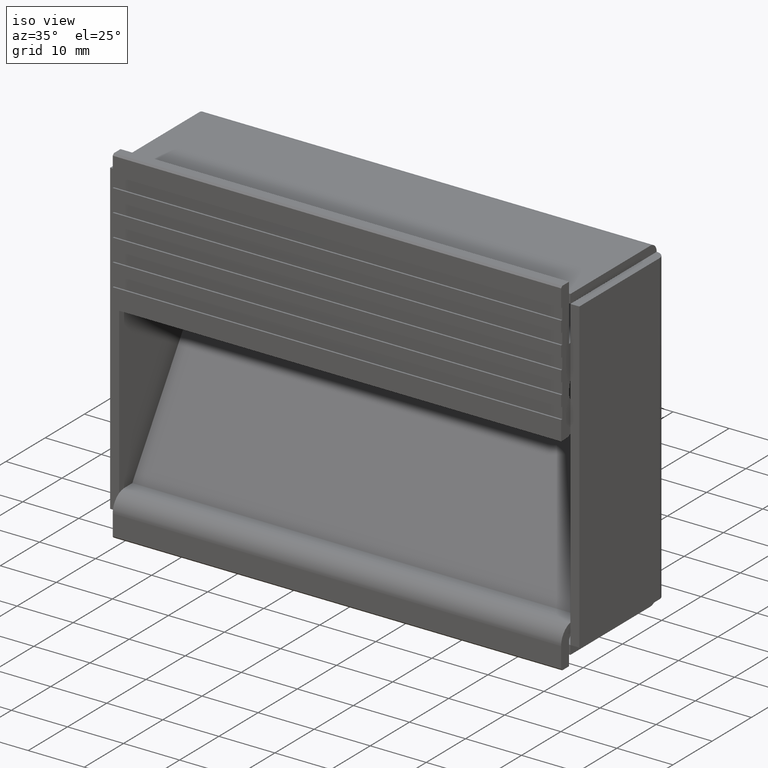
[diagram: clean part render]
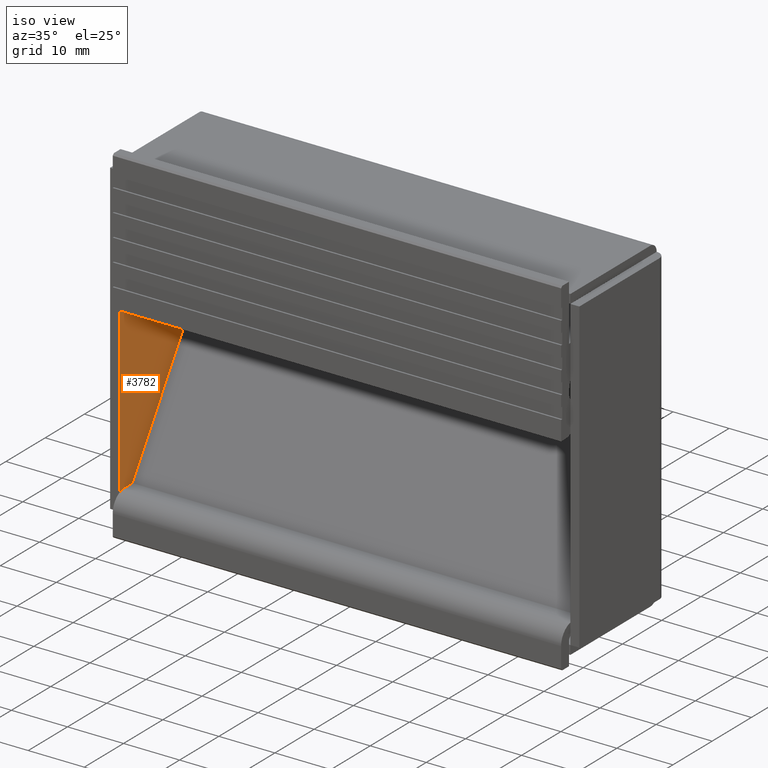
[diagram: same view with one face highlighted and labeled with its STEP entity id]
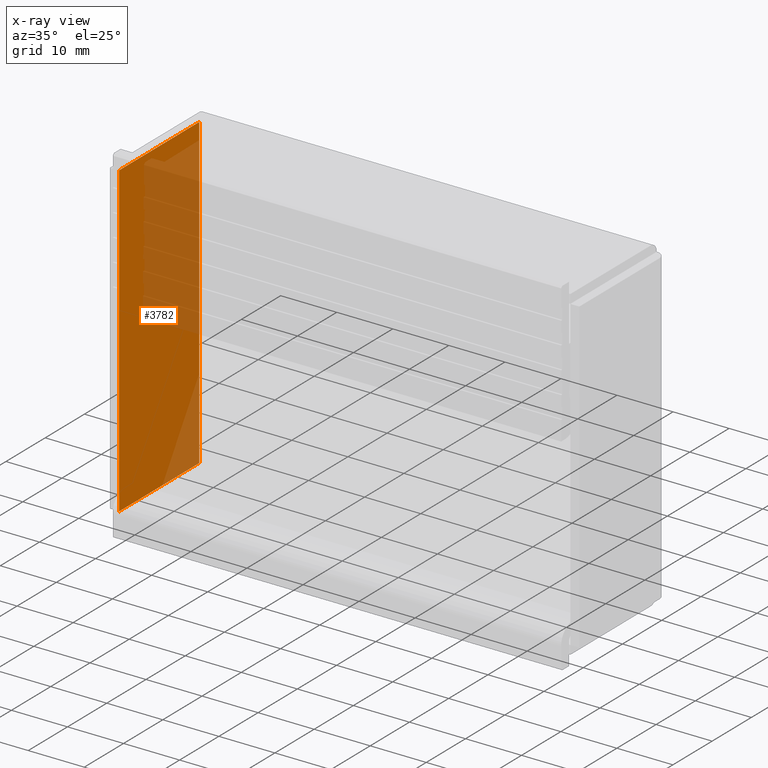
[diagram: x-ray of the same camera — body ghosted, the highlighted face saturated]
A machine part, iso view. The second image highlights one B-rep face of the part: STEP entity #3782.
The next image is the same camera in x-ray: the body ghosted, the highlighted face saturated — about 41% of this face is hidden behind the body in this view.
In plain terms, the highlighted face is a freeform B-spline surface patch.
Its self-contained STEP definition (entity closure, byte-faithful):
#3670=CARTESIAN_POINT('',(-40.250000000000000,36.368047999999952,58.500000000000000));
#3671=VERTEX_POINT('',#3670);
#3686=CARTESIAN_POINT('',(-40.250000000000000,36.368047999999952,3.500000000000000));
#3687=VERTEX_POINT('',#3686);
#3693=CARTESIAN_POINT('',(-40.250000000000000,36.368047999999952,3.500000000000000));
#3694=CARTESIAN_POINT('',(-40.250000000000000,36.368047999999952,58.500000000000000));
#3695=QUASI_UNIFORM_CURVE('',1,(#3693,#3694),.UNSPECIFIED.,.F.,.U.);
#3696=EDGE_CURVE('',#3687,#3671,#3695,.T.);
#3712=CARTESIAN_POINT('',(-40.250000000000000,56.768048000000000,3.500000000000000));
#3713=VERTEX_POINT('',#3712);
#3719=CARTESIAN_POINT('',(-40.250000000000000,36.368047999999952,3.500000000000000));
#3720=CARTESIAN_POINT('',(-40.250000000000000,56.768048000000000,3.500000000000000));
#3721=QUASI_UNIFORM_CURVE('',1,(#3719,#3720),.UNSPECIFIED.,.F.,.U.);
#3722=EDGE_CURVE('',#3687,#3713,#3721,.T.);
#3749=CARTESIAN_POINT('',(-40.250000000000000,56.768048000000000,58.500000000000000));
#3750=VERTEX_POINT('',#3749);
#3759=CARTESIAN_POINT('',(-40.250000000000000,36.368047999999952,58.500000000000000));
#3760=CARTESIAN_POINT('',(-40.250000000000000,56.768048000000000,58.500000000000000));
#3761=QUASI_UNIFORM_CURVE('',1,(#3759,#3760),.UNSPECIFIED.,.F.,.U.);
#3762=EDGE_CURVE('',#3671,#3750,#3761,.T.);
#3767=CARTESIAN_POINT('',(-40.250000000000000,35.349069835927679,0.752750106600675));
#3768=CARTESIAN_POINT('',(-40.250000000000000,35.349069835927679,61.247251368614293));
#3769=CARTESIAN_POINT('',(-40.250000000000000,57.787026893633140,0.752750106600675));
#3770=CARTESIAN_POINT('',(-40.250000000000000,57.787026893633140,61.247251368614293));
#3771=B_SPLINE_SURFACE_WITH_KNOTS('',1,1,((#3767,#3769),(#3768,#3770)),.UNSPECIFIED.,.F.,.F.,.U.,(2,2),(2,2),(0.0,60.494501262013607),(0.0,22.437957057705461),.UNSPECIFIED.);
#3772=ORIENTED_EDGE('',*,*,#3722,.T.);
#3773=CARTESIAN_POINT('',(-40.250000000000000,56.768048000000000,3.500000000000000));
#3774=CARTESIAN_POINT('',(-40.250000000000000,56.768048000000000,58.500000000000000));
#3775=QUASI_UNIFORM_CURVE('',1,(#3773,#3774),.UNSPECIFIED.,.F.,.U.);
#3776=EDGE_CURVE('',#3713,#3750,#3775,.T.);
#3777=ORIENTED_EDGE('',*,*,#3776,.T.);
#3778=ORIENTED_EDGE('',*,*,#3762,.F.);
#3779=ORIENTED_EDGE('',*,*,#3696,.F.);
#3780=EDGE_LOOP('',(#3772,#3777,#3778,#3779));
#3781=FACE_OUTER_BOUND('',#3780,.T.);
#3782=ADVANCED_FACE('',(#3781),#3771,.F.);